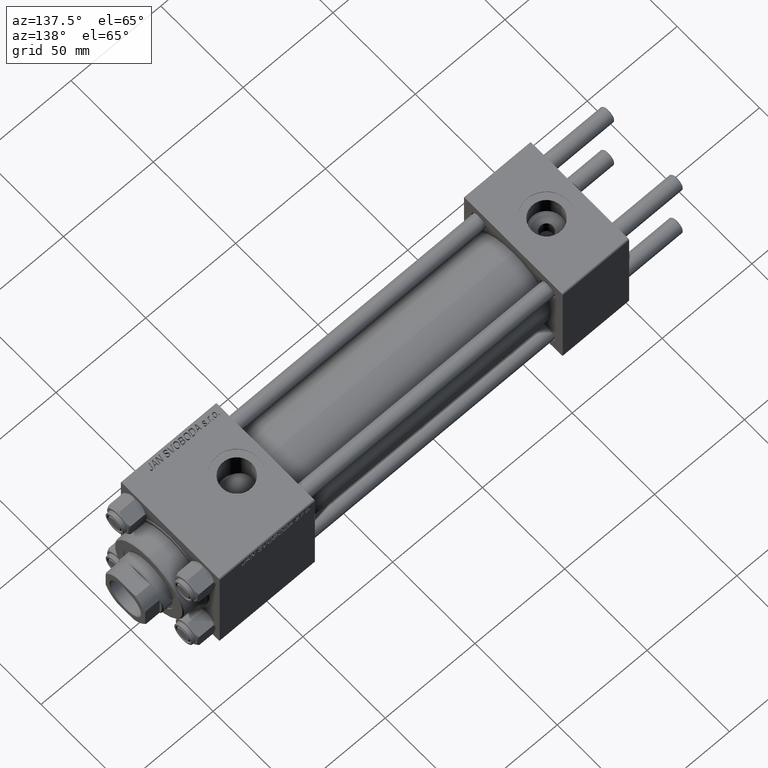
[diagram: clean part render]
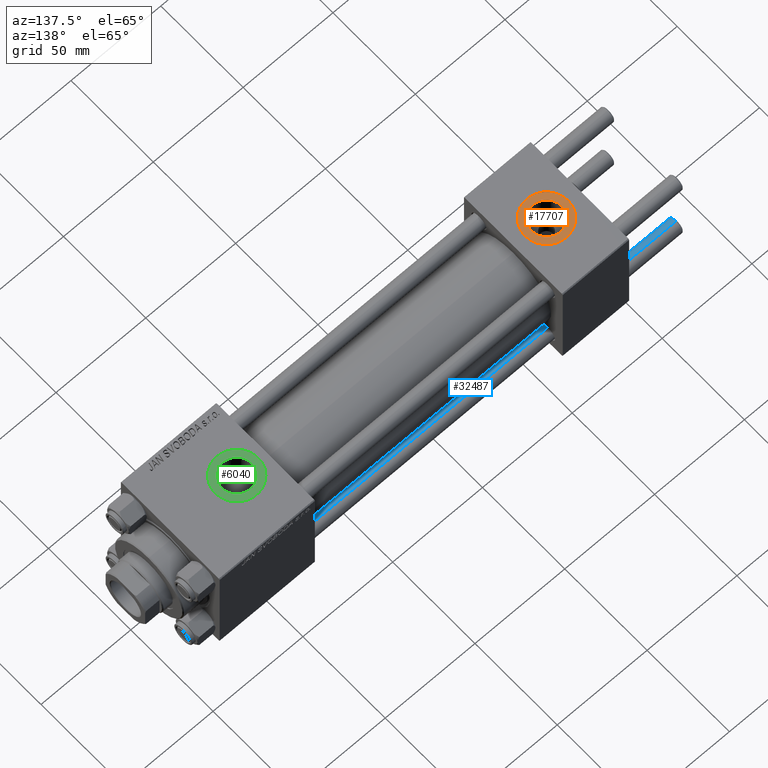
[diagram: same view with three faces highlighted in distinct colors, each labeled with its STEP entity id]
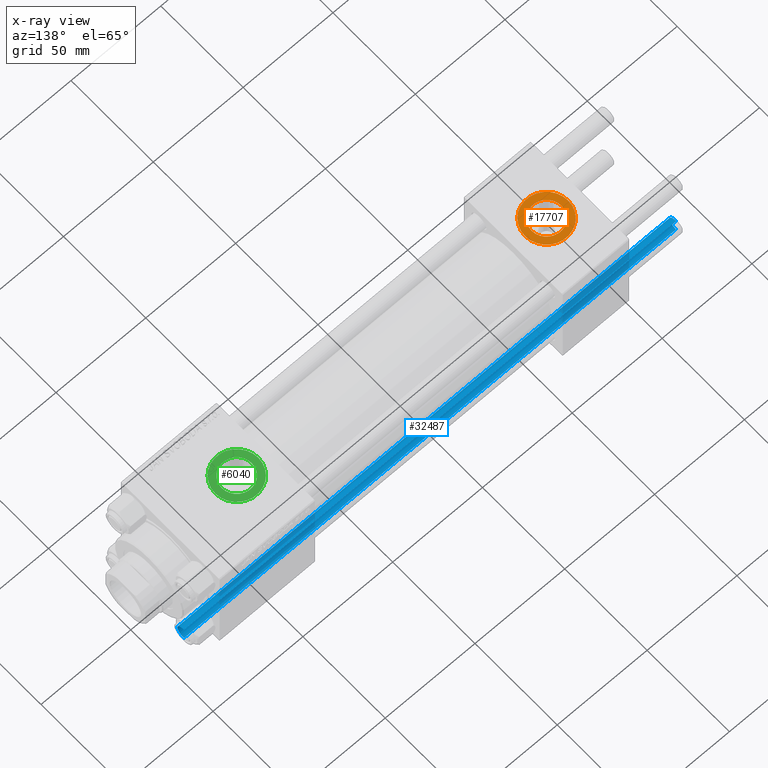
[diagram: x-ray of the same camera — body ghosted, the three highlighted faces saturated]
A machine part, auxiliary view with three faces highlighted in distinct colors.
The next image is the same camera in x-ray (body ghosted, the three faces saturated) — at least one of them is partly hidden behind the body in this view.
Their STEP definitions:

[orange] entity #17707 — the highlighted planar face has unit normal (0, 0, 1).
#967 = EDGE_CURVE ( 'NONE', #21549, #45297, #7435, .T. ) ;
#1891 = DIRECTION ( 'NONE',  ( 0.000000000000000000, 0.000000000000000000, 1.000000000000000000 ) ) ;
#2242 = CIRCLE ( 'NONE', #44927, 8.330000000000000071 ) ;
#3062 = CARTESIAN_POINT ( 'NONE',  ( 30.50000000000000000, -3.469446951953614978E-15, 29.79999999999999716 ) ) ;
#7155 = DIRECTION ( 'NONE',  ( 0.000000000000000000, 0.000000000000000000, 1.000000000000000000 ) ) ;
#7435 = CIRCLE ( 'NONE', #19519, 8.330000000000000071 ) ;
#8014 = CARTESIAN_POINT ( 'NONE',  ( 10.16999999999999638, -2.449316168263869821E-15, 29.79999999999999716 ) ) ;
#13130 = AXIS2_PLACEMENT_3D ( 'NONE', #21052, #1891, #13733 ) ;
#13551 = AXIS2_PLACEMENT_3D ( 'NONE', #41465, #7155, #41722 ) ;
#13733 = DIRECTION ( 'NONE',  ( 1.000000000000000000, 0.000000000000000000, 0.000000000000000000 ) ) ;
#15582 = DIRECTION ( 'NONE',  ( 1.000000000000000000, 0.000000000000000000, 0.000000000000000000 ) ) ;
#16095 = DIRECTION ( 'NONE',  ( 1.000000000000000000, 0.000000000000000000, 0.000000000000000000 ) ) ;
#16389 = CARTESIAN_POINT ( 'NONE',  ( 6.499999999999997335, -1.999870792976790833E-15, 29.79999999999999716 ) ) ;
#16553 = VERTEX_POINT ( 'NONE', #3062 ) ;
#17707 = ADVANCED_FACE ( 'NONE', ( #28030, #23755 ), #43434, .T. ) ;
#17994 = CIRCLE ( 'NONE', #13130, 12.00000000000000000 ) ;
#18547 = ORIENTED_EDGE ( 'NONE', *, *, #967, .F. ) ;
#19142 = EDGE_LOOP ( 'NONE', ( #34368, #18547 ) ) ;
#19453 = CARTESIAN_POINT ( 'NONE',  ( 18.50000000000000000, -3.469446951953614978E-15, 29.79999999999999716 ) ) ;
#19519 = AXIS2_PLACEMENT_3D ( 'NONE', #29979, #45367, #15582 ) ;
#21052 = CARTESIAN_POINT ( 'NONE',  ( 18.50000000000000000, -3.469446951953614978E-15, 29.79999999999999716 ) ) ;
#21549 = VERTEX_POINT ( 'NONE', #8014 ) ;
#23755 = FACE_OUTER_BOUND ( 'NONE', #30986, .T. ) ;
#24417 = CARTESIAN_POINT ( 'NONE',  ( 18.50000000000000000, -3.469446951953614978E-15, 29.79999999999999716 ) ) ;
#26533 = AXIS2_PLACEMENT_3D ( 'NONE', #19453, #39147, #34864 ) ;
#28030 = FACE_BOUND ( 'NONE', #19142, .T. ) ;
#29979 = CARTESIAN_POINT ( 'NONE',  ( 18.50000000000000000, -3.469446951953614978E-15, 29.79999999999999716 ) ) ;
#30986 = EDGE_LOOP ( 'NONE', ( #45872, #31719 ) ) ;
#31719 = ORIENTED_EDGE ( 'NONE', *, *, #48184, .T. ) ;
#32034 = EDGE_CURVE ( 'NONE', #16553, #45521, #17994, .T. ) ;
#34368 = ORIENTED_EDGE ( 'NONE', *, *, #46739, .F. ) ;
#34864 = DIRECTION ( 'NONE',  ( 1.000000000000000000, 0.000000000000000000, -0.000000000000000000 ) ) ;
#36885 = CARTESIAN_POINT ( 'NONE',  ( 26.82999999999999829, -3.469446951953614978E-15, 29.79999999999999716 ) ) ;
#37727 = CIRCLE ( 'NONE', #13551, 12.00000000000000000 ) ;
#39147 = DIRECTION ( 'NONE',  ( 0.000000000000000000, 0.000000000000000000, 1.000000000000000000 ) ) ;
#39818 = DIRECTION ( 'NONE',  ( 0.000000000000000000, 0.000000000000000000, 1.000000000000000000 ) ) ;
#41465 = CARTESIAN_POINT ( 'NONE',  ( 18.50000000000000000, -3.469446951953614978E-15, 29.79999999999999716 ) ) ;
#41722 = DIRECTION ( 'NONE',  ( 1.000000000000000000, 0.000000000000000000, 0.000000000000000000 ) ) ;
#43434 = PLANE ( 'NONE',  #26533 ) ;
#44927 = AXIS2_PLACEMENT_3D ( 'NONE', #24417, #39818, #16095 ) ;
#45297 = VERTEX_POINT ( 'NONE', #36885 ) ;
#45367 = DIRECTION ( 'NONE',  ( 0.000000000000000000, 0.000000000000000000, 1.000000000000000000 ) ) ;
#45521 = VERTEX_POINT ( 'NONE', #16389 ) ;
#45872 = ORIENTED_EDGE ( 'NONE', *, *, #32034, .T. ) ;
#46739 = EDGE_CURVE ( 'NONE', #45297, #21549, #2242, .T. ) ;
#48184 = EDGE_CURVE ( 'NONE', #45521, #16553, #37727, .T. ) ;

[blue] entity #32487 — the highlighted cylindrical surface (edge-blend (fillet) strip) has radius 4 mm, axis along (1, 0, -0).
#2438 = LINE ( 'NONE', #13026, #32903 ) ;
#3932 = DIRECTION ( 'NONE',  ( 0.000000000000000000, 0.000000000000000000, -1.000000000000000000 ) ) ;
#5513 = VECTOR ( 'NONE', #41997, 1000.000000000000000 ) ;
#6981 = VERTEX_POINT ( 'NONE', #15922 ) ;
#7841 = CARTESIAN_POINT ( 'NONE',  ( -4.000000000000000000, 0.000000000000000000, 274.5000000000000568 ) ) ;
#8375 = VERTEX_POINT ( 'NONE', #46097 ) ;
#10464 = CARTESIAN_POINT ( 'NONE',  ( -4.000000000000000000, 0.000000000000000000, 275.0000000000000000 ) ) ;
#10817 = FACE_OUTER_BOUND ( 'NONE', #18171, .T. ) ;
#10891 = ORIENTED_EDGE ( 'NONE', *, *, #47707, .F. ) ;
#13026 = CARTESIAN_POINT ( 'NONE',  ( 4.000000000000000000, 4.898587196589412829E-16, 275.0000000000000000 ) ) ;
#15187 = ORIENTED_EDGE ( 'NONE', *, *, #21370, .T. ) ;
#15922 = CARTESIAN_POINT ( 'NONE',  ( 4.000000000000000000, 4.898587196589412829E-16, 274.5000000000000568 ) ) ;
#17794 = ORIENTED_EDGE ( 'NONE', *, *, #45246, .T. ) ;
#18171 = EDGE_LOOP ( 'NONE', ( #10891, #17794, #35163, #15187 ) ) ;
#19971 = EDGE_CURVE ( 'NONE', #40644, #47682, #22323, .T. ) ;
#21370 = EDGE_CURVE ( 'NONE', #47682, #8375, #38595, .T. ) ;
#22323 = LINE ( 'NONE', #10464, #5513 ) ;
#22344 = AXIS2_PLACEMENT_3D ( 'NONE', #23107, #3932, #47717 ) ;
#23107 = CARTESIAN_POINT ( 'NONE',  ( 0.000000000000000000, 0.000000000000000000, 274.5000000000000568 ) ) ;
#23965 = DIRECTION ( 'NONE',  ( -0.000000000000000000, -0.000000000000000000, 1.000000000000000000 ) ) ;
#26383 = CIRCLE ( 'NONE', #22344, 4.000000000000000000 ) ;
#27218 = DIRECTION ( 'NONE',  ( -0.000000000000000000, -0.000000000000000000, -1.000000000000000000 ) ) ;
#32283 = CARTESIAN_POINT ( 'NONE',  ( 0.000000000000000000, 0.000000000000000000, 0.5000000000000559552 ) ) ;
#32487 = ADVANCED_FACE ( 'NONE', ( #10817 ), #34041, .T. ) ;
#32728 = DIRECTION ( 'NONE',  ( -0.000000000000000000, -0.000000000000000000, -1.000000000000000000 ) ) ;
#32903 = VECTOR ( 'NONE', #32728, 1000.000000000000000 ) ;
#32943 = AXIS2_PLACEMENT_3D ( 'NONE', #32283, #23965, #47405 ) ;
#33325 = AXIS2_PLACEMENT_3D ( 'NONE', #49657, #27218, #49908 ) ;
#34041 = CYLINDRICAL_SURFACE ( 'NONE', #33325, 4.000000000000000000 ) ;
#35163 = ORIENTED_EDGE ( 'NONE', *, *, #19971, .T. ) ;
#35763 = CARTESIAN_POINT ( 'NONE',  ( -4.000000000000000000, 0.000000000000000000, 0.5000000000000559552 ) ) ;
#38595 = CIRCLE ( 'NONE', #32943, 4.000000000000000000 ) ;
#40644 = VERTEX_POINT ( 'NONE', #7841 ) ;
#41997 = DIRECTION ( 'NONE',  ( -0.000000000000000000, -0.000000000000000000, -1.000000000000000000 ) ) ;
#45246 = EDGE_CURVE ( 'NONE', #6981, #40644, #26383, .T. ) ;
#46097 = CARTESIAN_POINT ( 'NONE',  ( 4.000000000000000000, 4.898587196589412829E-16, 0.5000000000000559552 ) ) ;
#47405 = DIRECTION ( 'NONE',  ( 1.000000000000000000, 0.000000000000000000, 0.000000000000000000 ) ) ;
#47682 = VERTEX_POINT ( 'NONE', #35763 ) ;
#47707 = EDGE_CURVE ( 'NONE', #6981, #8375, #2438, .T. ) ;
#47717 = DIRECTION ( 'NONE',  ( 1.000000000000000000, 0.000000000000000000, 0.000000000000000000 ) ) ;
#49657 = CARTESIAN_POINT ( 'NONE',  ( 0.000000000000000000, 0.000000000000000000, 275.0000000000000000 ) ) ;
#49908 = DIRECTION ( 'NONE',  ( -1.000000000000000000, 0.000000000000000000, 0.000000000000000000 ) ) ;

[green] entity #6040 — the highlighted planar face has unit normal (0, 0, 1).
#85 = EDGE_LOOP ( 'NONE', ( #33187, #34552 ) ) ;
#472 = ORIENTED_EDGE ( 'NONE', *, *, #34473, .T. ) ;
#1967 = EDGE_LOOP ( 'NONE', ( #472, #13810 ) ) ;
#2123 = CIRCLE ( 'NONE', #12590, 8.330000000000003624 ) ;
#4233 = CARTESIAN_POINT ( 'NONE',  ( 203.0000000000000000, -3.469446951953613794E-15, 29.79999999999999716 ) ) ;
#5010 = CARTESIAN_POINT ( 'NONE',  ( 191.0000000000000000, -3.469446951953613794E-15, 29.79999999999999716 ) ) ;
#5346 = VERTEX_POINT ( 'NONE', #18021 ) ;
#6040 = ADVANCED_FACE ( 'NONE', ( #31459, #46828 ), #12255, .T. ) ;
#7188 = CIRCLE ( 'NONE', #38598, 12.00000000000001066 ) ;
#8446 = DIRECTION ( 'NONE',  ( 0.000000000000000000, 0.000000000000000000, 1.000000000000000000 ) ) ;
#9489 = CARTESIAN_POINT ( 'NONE',  ( 182.6699999999999875, -3.469446951953613794E-15, 29.79999999999999716 ) ) ;
#9892 = VERTEX_POINT ( 'NONE', #13869 ) ;
#10892 = DIRECTION ( 'NONE',  ( 0.000000000000000000, 0.000000000000000000, 1.000000000000000000 ) ) ;
#11039 = EDGE_CURVE ( 'NONE', #9892, #30348, #2123, .T. ) ;
#12255 = PLANE ( 'NONE',  #16488 ) ;
#12323 = DIRECTION ( 'NONE',  ( 1.000000000000000000, 0.000000000000000000, 0.000000000000000000 ) ) ;
#12590 = AXIS2_PLACEMENT_3D ( 'NONE', #5010, #31521, #12323 ) ;
#13523 = CARTESIAN_POINT ( 'NONE',  ( 191.0000000000000000, -3.469446951953613794E-15, 29.79999999999999716 ) ) ;
#13556 = CIRCLE ( 'NONE', #19990, 12.00000000000001066 ) ;
#13810 = ORIENTED_EDGE ( 'NONE', *, *, #11039, .T. ) ;
#13869 = CARTESIAN_POINT ( 'NONE',  ( 199.3300000000000125, -2.449316168263869821E-15, 29.79999999999999716 ) ) ;
#15491 = EDGE_CURVE ( 'NONE', #5346, #35146, #13556, .T. ) ;
#16488 = AXIS2_PLACEMENT_3D ( 'NONE', #43062, #35983, #47075 ) ;
#17589 = EDGE_CURVE ( 'NONE', #35146, #5346, #7188, .T. ) ;
#18021 = CARTESIAN_POINT ( 'NONE',  ( 179.0000000000000000, -1.999870792976789650E-15, 29.79999999999999716 ) ) ;
#19990 = AXIS2_PLACEMENT_3D ( 'NONE', #32164, #8446, #47531 ) ;
#21967 = AXIS2_PLACEMENT_3D ( 'NONE', #13523, #43576, #44074 ) ;
#26300 = DIRECTION ( 'NONE',  ( 1.000000000000000000, 0.000000000000000000, 0.000000000000000000 ) ) ;
#30348 = VERTEX_POINT ( 'NONE', #9489 ) ;
#31459 = FACE_BOUND ( 'NONE', #1967, .T. ) ;
#31521 = DIRECTION ( 'NONE',  ( -0.000000000000000000, -0.000000000000000000, -1.000000000000000000 ) ) ;
#32164 = CARTESIAN_POINT ( 'NONE',  ( 191.0000000000000000, -3.469446951953613794E-15, 29.79999999999999716 ) ) ;
#33187 = ORIENTED_EDGE ( 'NONE', *, *, #17589, .T. ) ;
#34473 = EDGE_CURVE ( 'NONE', #30348, #9892, #42140, .T. ) ;
#34552 = ORIENTED_EDGE ( 'NONE', *, *, #15491, .T. ) ;
#35146 = VERTEX_POINT ( 'NONE', #4233 ) ;
#35983 = DIRECTION ( 'NONE',  ( 0.000000000000000000, 0.000000000000000000, 1.000000000000000000 ) ) ;
#38598 = AXIS2_PLACEMENT_3D ( 'NONE', #45464, #10892, #26300 ) ;
#42140 = CIRCLE ( 'NONE', #21967, 8.330000000000003624 ) ;
#43062 = CARTESIAN_POINT ( 'NONE',  ( 191.0000000000000000, -3.469446951953613794E-15, 29.79999999999999716 ) ) ;
#43576 = DIRECTION ( 'NONE',  ( -0.000000000000000000, -0.000000000000000000, -1.000000000000000000 ) ) ;
#44074 = DIRECTION ( 'NONE',  ( 1.000000000000000000, 0.000000000000000000, 0.000000000000000000 ) ) ;
#45464 = CARTESIAN_POINT ( 'NONE',  ( 191.0000000000000000, -3.469446951953613794E-15, 29.79999999999999716 ) ) ;
#46828 = FACE_OUTER_BOUND ( 'NONE', #85, .T. ) ;
#47075 = DIRECTION ( 'NONE',  ( 1.000000000000000000, 0.000000000000000000, -0.000000000000000000 ) ) ;
#47531 = DIRECTION ( 'NONE',  ( 1.000000000000000000, 0.000000000000000000, 0.000000000000000000 ) ) ;